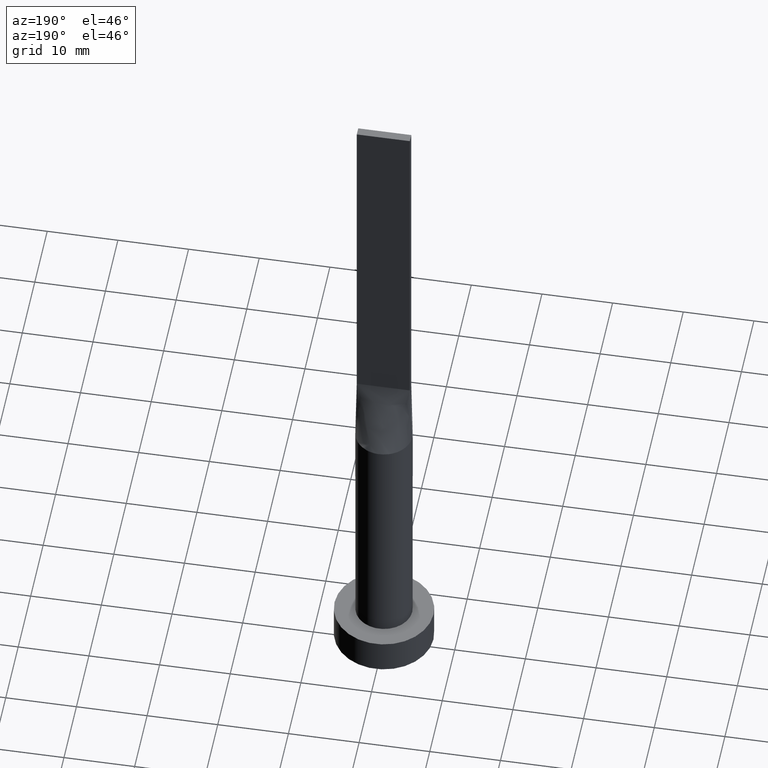
[diagram: clean part render]
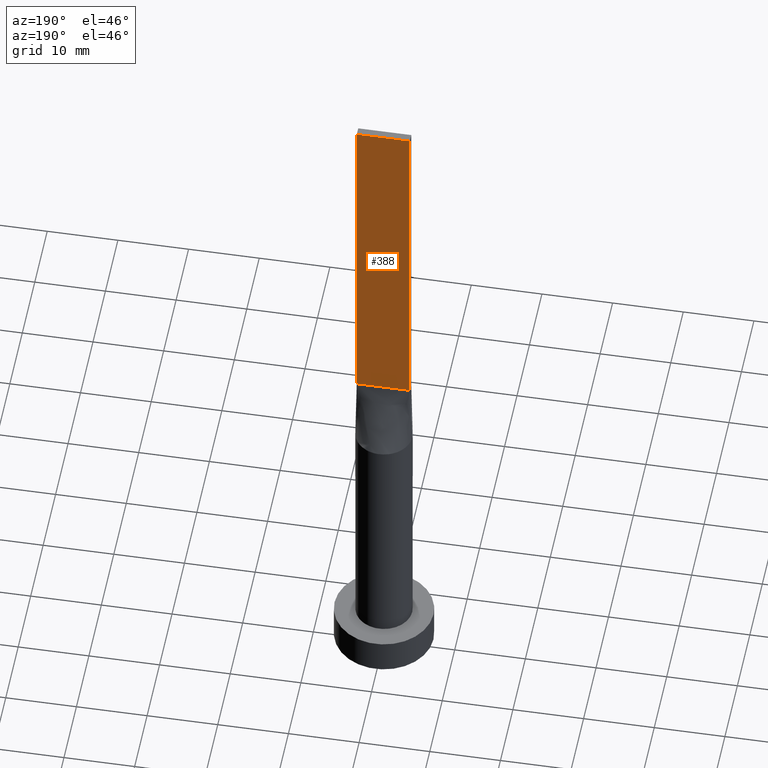
[diagram: same view with one face highlighted and labeled with its STEP entity id]
A machine part, auxiliary view. The second image highlights one B-rep face of the part: STEP entity #388.
In plain terms, the highlighted planar face has unit normal (0, -1, 0).
Its self-contained STEP definition (entity closure, byte-faithful):
#11 = DIRECTION ( 'NONE',  ( -0.000000000000000000, -0.000000000000000000, -1.000000000000000000 ) ) ;
#24 = DIRECTION ( 'NONE',  ( -1.000000000000000000, 0.000000000000000000, 0.000000000000000000 ) ) ;
#36 = CARTESIAN_POINT ( 'NONE',  ( 3.750000000000000000, 0.6000000000000001998, 100.0000000000000000 ) ) ;
#40 = CARTESIAN_POINT ( 'NONE',  ( 3.750000000000000000, 0.6000000000000001998, 100.0000000000000000 ) ) ;
#42 = EDGE_CURVE ( 'NONE', #57, #52, #522, .T. ) ;
#45 = CARTESIAN_POINT ( 'NONE',  ( -3.750000000000000000, 0.6000000000000001998, 100.0000000000000000 ) ) ;
#52 = VERTEX_POINT ( 'NONE', #215 ) ;
#57 = VERTEX_POINT ( 'NONE', #482 ) ;
#118 = EDGE_CURVE ( 'NONE', #450, #57, #257, .T. ) ;
#120 = DIRECTION ( 'NONE',  ( 0.000000000000000000, -0.000000000000000000, -1.000000000000000000 ) ) ;
#130 = AXIS2_PLACEMENT_3D ( 'NONE', #519, #306, #120 ) ;
#165 = ORIENTED_EDGE ( 'NONE', *, *, #118, .T. ) ;
#175 = VECTOR ( 'NONE', #250, 1000.000000000000000 ) ;
#187 = EDGE_LOOP ( 'NONE', ( #324, #579, #335, #165 ) ) ;
#210 = CARTESIAN_POINT ( 'NONE',  ( -3.750000000000000000, 0.6000000000000001998, 50.00000000000000000 ) ) ;
#215 = CARTESIAN_POINT ( 'NONE',  ( -3.750000000000000000, 0.6000000000000001998, 50.00000000000000000 ) ) ;
#220 = PLANE ( 'NONE',  #130 ) ;
#238 = LINE ( 'NONE', #45, #459 ) ;
#250 = DIRECTION ( 'NONE',  ( -1.000000000000000000, -0.000000000000000000, -0.000000000000000000 ) ) ;
#257 = LINE ( 'NONE', #36, #549 ) ;
#259 = CARTESIAN_POINT ( 'NONE',  ( -3.750000000000000000, 0.6000000000000001998, 100.0000000000000000 ) ) ;
#264 = DIRECTION ( 'NONE',  ( -0.000000000000000000, -0.000000000000000000, -1.000000000000000000 ) ) ;
#298 = EDGE_CURVE ( 'NONE', #437, #52, #238, .T. ) ;
#306 = DIRECTION ( 'NONE',  ( 0.000000000000000000, -1.000000000000000000, 0.000000000000000000 ) ) ;
#324 = ORIENTED_EDGE ( 'NONE', *, *, #42, .T. ) ;
#333 = LINE ( 'NONE', #385, #390 ) ;
#335 = ORIENTED_EDGE ( 'NONE', *, *, #355, .F. ) ;
#355 = EDGE_CURVE ( 'NONE', #450, #437, #333, .T. ) ;
#385 = CARTESIAN_POINT ( 'NONE',  ( 3.750000000000000000, 0.6000000000000001998, 100.0000000000000000 ) ) ;
#388 = ADVANCED_FACE ( 'NONE', ( #436 ), #220, .F. ) ;
#390 = VECTOR ( 'NONE', #24, 1000.000000000000000 ) ;
#436 = FACE_OUTER_BOUND ( 'NONE', #187, .T. ) ;
#437 = VERTEX_POINT ( 'NONE', #259 ) ;
#450 = VERTEX_POINT ( 'NONE', #40 ) ;
#459 = VECTOR ( 'NONE', #11, 1000.000000000000000 ) ;
#482 = CARTESIAN_POINT ( 'NONE',  ( 3.750000000000000000, 0.6000000000000001998, 50.00000000000000000 ) ) ;
#519 = CARTESIAN_POINT ( 'NONE',  ( 3.750000000000000000, 0.6000000000000001998, 100.0000000000000000 ) ) ;
#522 = LINE ( 'NONE', #210, #175 ) ;
#549 = VECTOR ( 'NONE', #264, 1000.000000000000000 ) ;
#579 = ORIENTED_EDGE ( 'NONE', *, *, #298, .F. ) ;